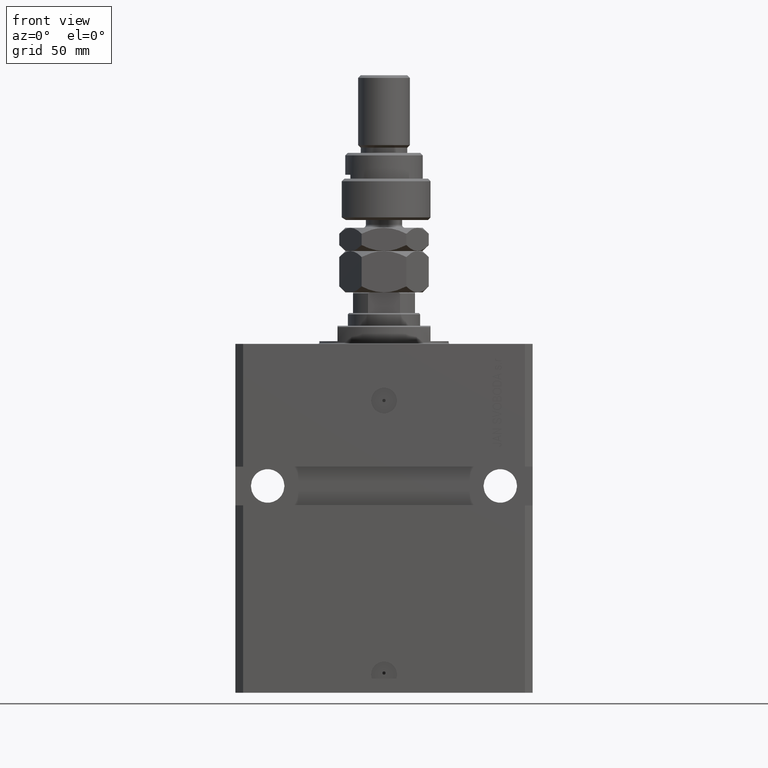
[diagram: clean part render]
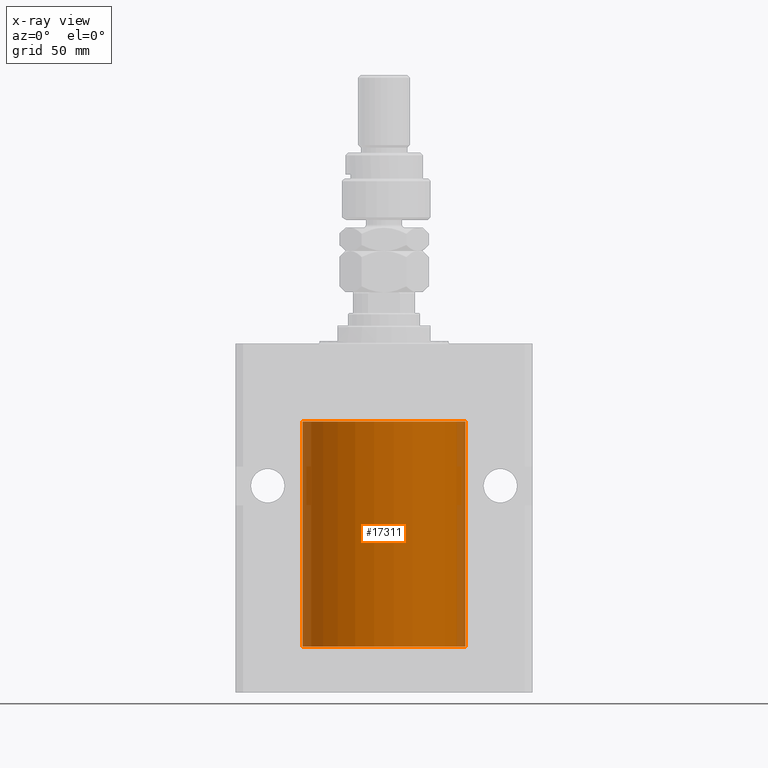
[diagram: x-ray — body ghosted, one internal face saturated and labeled with its STEP entity id]
A machine part, front view, then the same camera in x-ray: the body is ghosted and one INTERNAL B-rep face — a face not visible from any outside direction — is saturated and labeled: STEP entity #17311.
In plain terms, the highlighted cylindrical surface (partial cylindrical patch) has radius 31.5 mm, axis along (0, 0, 1).
Its self-contained STEP definition (entity closure, byte-faithful):
#10 = CIRCLE ( 'NONE', #49055, 31.50000000000000000 ) ;
#1548 = VERTEX_POINT ( 'NONE', #2615 ) ;
#2104 = CARTESIAN_POINT ( 'NONE',  ( 31.50000000000000000, 0.000000000000000000, -117.0999999999999943 ) ) ;
#2615 = CARTESIAN_POINT ( 'NONE',  ( -31.50000000000000000, 3.857637417314162689E-15, -30.10000000000000142 ) ) ;
#2812 = ORIENTED_EDGE ( 'NONE', *, *, #16623, .T. ) ;
#3930 = DIRECTION ( 'NONE',  ( -0.000000000000000000, -0.000000000000000000, 1.000000000000000000 ) ) ;
#5843 = CARTESIAN_POINT ( 'NONE',  ( 0.000000000000000000, 0.000000000000000000, -117.0999999999999943 ) ) ;
#6094 = EDGE_CURVE ( 'NONE', #38194, #31688, #27283, .T. ) ;
#6207 = DIRECTION ( 'NONE',  ( 0.000000000000000000, 0.000000000000000000, 1.000000000000000000 ) ) ;
#8927 = AXIS2_PLACEMENT_3D ( 'NONE', #51303, #3930, #18162 ) ;
#9002 = DIRECTION ( 'NONE',  ( 1.000000000000000000, 0.000000000000000000, 0.000000000000000000 ) ) ;
#9322 = ORIENTED_EDGE ( 'NONE', *, *, #24265, .T. ) ;
#10847 = CARTESIAN_POINT ( 'NONE',  ( -31.49528704891774211, -0.5569519313505083558, -114.3270938121662539 ) ) ;
#12433 = EDGE_CURVE ( 'NONE', #34906, #1548, #29933, .T. ) ;
#12673 = DIRECTION ( 'NONE',  ( -0.000000000000000000, -0.000000000000000000, 1.000000000000000000 ) ) ;
#13447 = CARTESIAN_POINT ( 'NONE',  ( -31.50000000000000000, -2.862469004324082213E-15, -113.3750000000000000 ) ) ;
#13777 = DIRECTION ( 'NONE',  ( 1.000000000000000000, 0.000000000000000000, 0.000000000000000000 ) ) ;
#13933 = CIRCLE ( 'NONE', #42193, 31.50000000000000000 ) ;
#14234 = CARTESIAN_POINT ( 'NONE',  ( -31.49527619204366857, -0.5575625051463252158, -113.6738430774043564 ) ) ;
#14755 = CARTESIAN_POINT ( 'NONE',  ( -31.50000000000006395, 3.480981129463732167E-13, -114.6250000000032401 ) ) ;
#15053 = CARTESIAN_POINT ( 'NONE',  ( -31.50000000000000000, 3.857637417314162689E-15, -117.0999999999999943 ) ) ;
#16623 = EDGE_CURVE ( 'NONE', #31688, #34906, #17034, .T. ) ;
#16805 = VERTEX_POINT ( 'NONE', #37074 ) ;
#17034 = B_SPLINE_CURVE_WITH_KNOTS ( 'NONE', 3,
 ( #14755, #19420, #30629, #10847, #26723, #49873, #14234, #42561, #30107, #45961 ),
 .UNSPECIFIED., .F., .F.,
 ( 4, 2, 2, 2, 4 ),
 ( 0.001954083649707762538, 0.002442494148669354520, 0.002930904647630946935, 0.003419315146592538917, 0.003907725645554130899 ),
 .UNSPECIFIED. ) ;
#17311 = ADVANCED_FACE ( 'NONE', ( #23750 ), #35423, .F. ) ;
#17653 = EDGE_CURVE ( 'NONE', #38194, #16805, #13933, .T. ) ;
#17935 = VECTOR ( 'NONE', #12673, 1000.000000000000000 ) ;
#18162 = DIRECTION ( 'NONE',  ( 1.000000000000000000, 0.000000000000000000, 0.000000000000000000 ) ) ;
#19420 = CARTESIAN_POINT ( 'NONE',  ( -31.50000000000000000, -0.1631292369235416984, -114.6250000000001563 ) ) ;
#21855 = CARTESIAN_POINT ( 'NONE',  ( -31.50000000000000000, 3.857637417314162689E-15, -117.0999999999999943 ) ) ;
#23750 = FACE_OUTER_BOUND ( 'NONE', #34211, .T. ) ;
#24265 = EDGE_CURVE ( 'NONE', #1548, #27589, #10, .T. ) ;
#25072 = DIRECTION ( 'NONE',  ( -0.000000000000000000, -0.000000000000000000, 1.000000000000000000 ) ) ;
#25974 = ORIENTED_EDGE ( 'NONE', *, *, #6094, .T. ) ;
#26028 = DIRECTION ( 'NONE',  ( -0.000000000000000000, -0.000000000000000000, 1.000000000000000000 ) ) ;
#26358 = VECTOR ( 'NONE', #26028, 1000.000000000000000 ) ;
#26723 = CARTESIAN_POINT ( 'NONE',  ( -31.49380174372966223, -0.6248613812773637921, -114.1653655539884369 ) ) ;
#27283 = LINE ( 'NONE', #15053, #17935 ) ;
#27338 = CARTESIAN_POINT ( 'NONE',  ( 31.50000000000000000, 0.000000000000000000, -30.10000000000000142 ) ) ;
#27589 = VERTEX_POINT ( 'NONE', #27338 ) ;
#29651 = VECTOR ( 'NONE', #25072, 1000.000000000000000 ) ;
#29933 = LINE ( 'NONE', #45785, #26358 ) ;
#30107 = CARTESIAN_POINT ( 'NONE',  ( -31.49999999999999289, -0.1651478413229920950, -113.3749999999999858 ) ) ;
#30629 = CARTESIAN_POINT ( 'NONE',  ( -31.49852099238383119, -0.3263081977449447946, -114.5574125724066619 ) ) ;
#31185 = CARTESIAN_POINT ( 'NONE',  ( -31.50000000000006395, 3.480981129463732167E-13, -114.6250000000032401 ) ) ;
#31688 = VERTEX_POINT ( 'NONE', #31185 ) ;
#33127 = LINE ( 'NONE', #2104, #29651 ) ;
#34211 = EDGE_LOOP ( 'NONE', ( #41816, #25974, #2812, #49276, #9322, #34915 ) ) ;
#34906 = VERTEX_POINT ( 'NONE', #13447 ) ;
#34915 = ORIENTED_EDGE ( 'NONE', *, *, #47128, .F. ) ;
#35423 = CYLINDRICAL_SURFACE ( 'NONE', #8927, 31.50000000000000000 ) ;
#37074 = CARTESIAN_POINT ( 'NONE',  ( 31.50000000000000000, 0.000000000000000000, -117.0999999999999943 ) ) ;
#38194 = VERTEX_POINT ( 'NONE', #21855 ) ;
#40718 = DIRECTION ( 'NONE',  ( 0.000000000000000000, 0.000000000000000000, 1.000000000000000000 ) ) ;
#41816 = ORIENTED_EDGE ( 'NONE', *, *, #17653, .F. ) ;
#42193 = AXIS2_PLACEMENT_3D ( 'NONE', #5843, #40718, #9002 ) ;
#42561 = CARTESIAN_POINT ( 'NONE',  ( -31.49851430197701063, -0.3269482044720602998, -113.4429011246694188 ) ) ;
#45785 = CARTESIAN_POINT ( 'NONE',  ( -31.50000000000000000, 3.857637417314162689E-15, -117.0999999999999943 ) ) ;
#45961 = CARTESIAN_POINT ( 'NONE',  ( -31.50000000000000000, -2.862469004324082213E-15, -113.3750000000000000 ) ) ;
#47128 = EDGE_CURVE ( 'NONE', #16805, #27589, #33127, .T. ) ;
#49055 = AXIS2_PLACEMENT_3D ( 'NONE', #49673, #6207, #13777 ) ;
#49276 = ORIENTED_EDGE ( 'NONE', *, *, #12433, .T. ) ;
#49673 = CARTESIAN_POINT ( 'NONE',  ( 0.000000000000000000, 0.000000000000000000, -30.10000000000000142 ) ) ;
#49873 = CARTESIAN_POINT ( 'NONE',  ( -31.49379625064871391, -0.6251381781549172345, -113.8356839311847466 ) ) ;
#51303 = CARTESIAN_POINT ( 'NONE',  ( 0.000000000000000000, 0.000000000000000000, -117.0999999999999943 ) ) ;